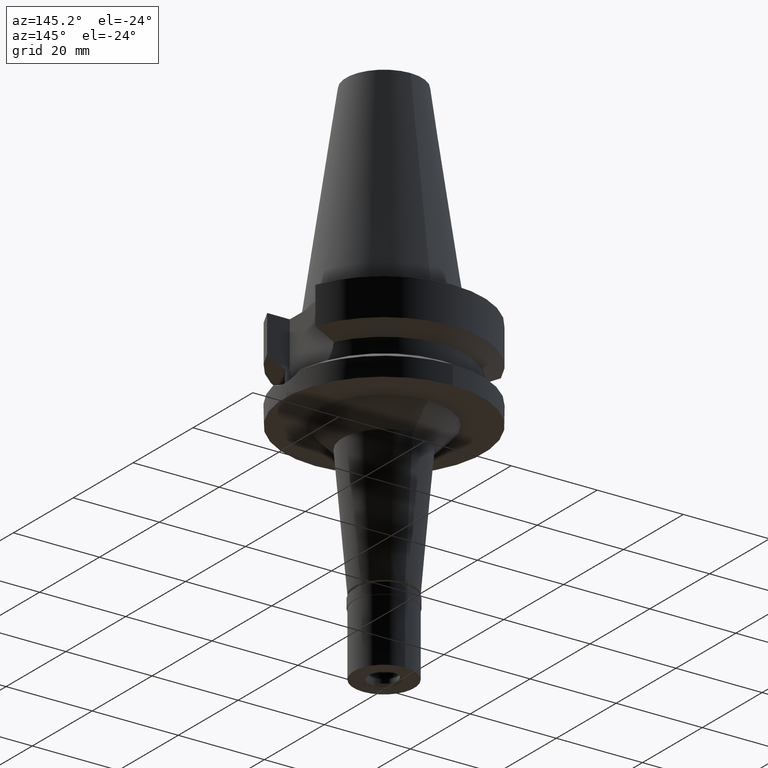
[diagram: clean part render]
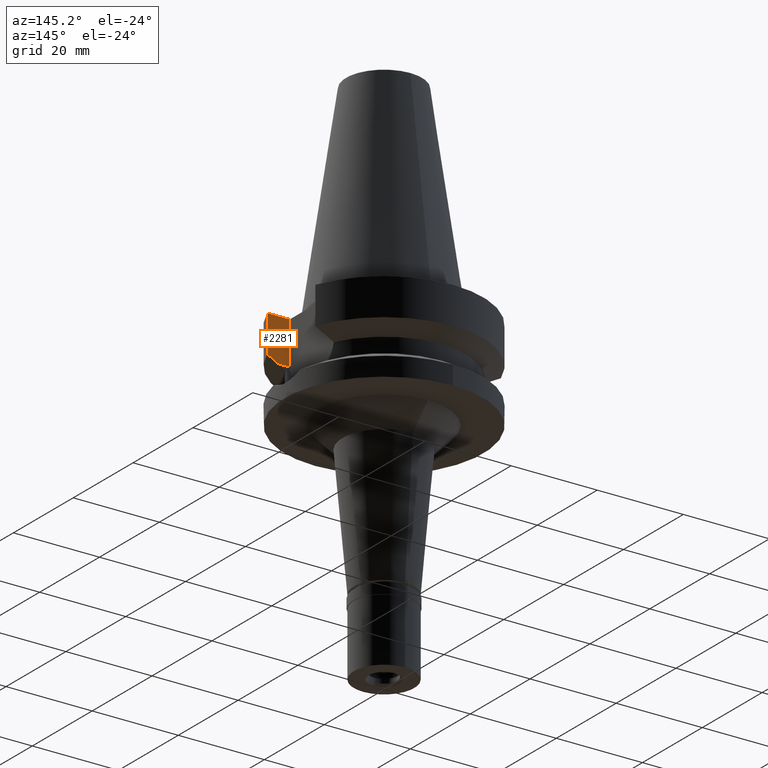
[diagram: same view with one face highlighted and labeled with its STEP entity id]
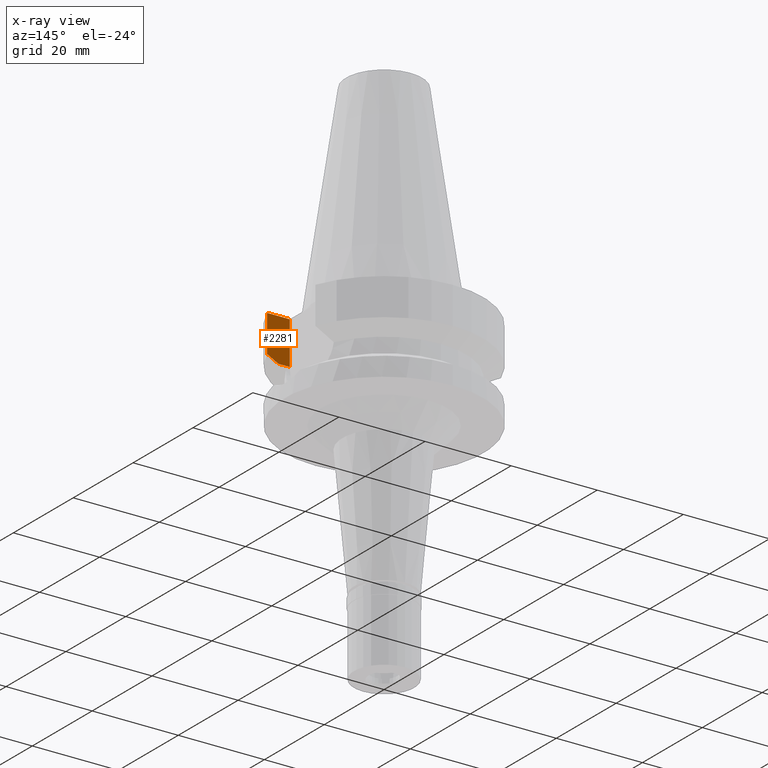
[diagram: x-ray of the same camera — body ghosted, the highlighted face saturated]
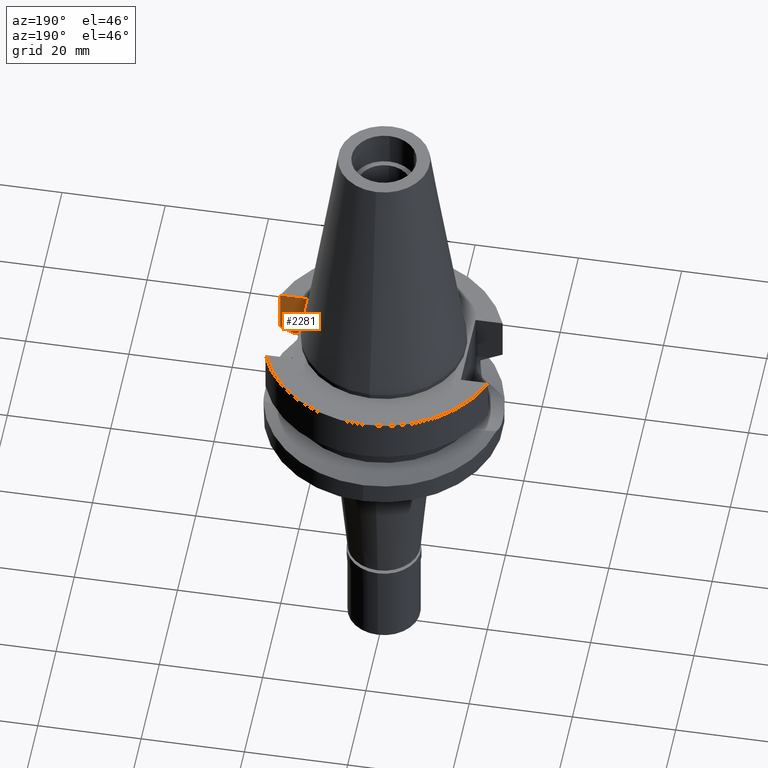
[diagram: same view with one face highlighted and labeled with its STEP entity id]
A machine part, auxiliary view. The second image highlights one B-rep face of the part: STEP entity #2281.
The next image is the same camera in x-ray: the body ghosted, the highlighted face saturated — about 0% of this face is hidden behind the body in this view.
A second angle (auxiliary view) of the same face is appended — the face is thin or edge-on in the first view.
In plain terms, the highlighted planar face has unit normal (0, -1, 0).
Its self-contained STEP definition (entity closure, byte-faithful):
#41 = VECTOR ( 'NONE', #2615, 1000.000000000000000 ) ;
#139 = B_SPLINE_CURVE_WITH_KNOTS ( 'NONE', 3,
 ( #2818, #1412, #528, #1913 ),
 .UNSPECIFIED., .F., .F.,
 ( 4, 4 ),
 ( 0.0000000000000000000, 1.000000000000000000 ),
 .UNSPECIFIED. ) ;
#313 = VECTOR ( 'NONE', #1894, 1000.000000000000114 ) ;
#426 = DIRECTION ( 'NONE',  ( 1.000000000000000000, -9.347030801892000173E-14, 0.0000000000000000000 ) ) ;
#480 = VERTEX_POINT ( 'NONE', #1077 ) ;
#528 = CARTESIAN_POINT ( 'NONE',  ( 20.64101735201231591, -8.050004185258069711, -10.05624233374762966 ) ) ;
#644 = EDGE_CURVE ( 'NONE', #1127, #480, #2799, .T. ) ;
#744 = CARTESIAN_POINT ( 'NONE',  ( 18.96736186693999926, -8.050001277873001015, -10.94999977540000025 ) ) ;
#829 = ORIENTED_EDGE ( 'NONE', *, *, #644, .T. ) ;
#880 = LINE ( 'NONE', #1099, #2166 ) ;
#930 = DIRECTION ( 'NONE',  ( 0.0000000000000000000, -1.000000000000000000, 0.0000000000000000000 ) ) ;
#1077 = CARTESIAN_POINT ( 'NONE',  ( 21.54524309446999908, -8.050000000002000888, -9.567208369710998639 ) ) ;
#1099 = CARTESIAN_POINT ( 'NONE',  ( 16.29999999999999716, -8.050000000000000711, -1.000000000000000000 ) ) ;
#1127 = VERTEX_POINT ( 'NONE', #1327 ) ;
#1144 = LINE ( 'NONE', #744, #2129 ) ;
#1153 = FACE_OUTER_BOUND ( 'NONE', #2327, .T. ) ;
#1161 = DIRECTION ( 'NONE',  ( -0.9999999999998816502, 4.790775581495907912E-07, -8.420253777260848103E-08 ) ) ;
#1170 = CARTESIAN_POINT ( 'NONE',  ( 21.54524309446999908, -8.050000000000000711, -1.000000000000000000 ) ) ;
#1326 = ORIENTED_EDGE ( 'NONE', *, *, #2617, .T. ) ;
#1327 = CARTESIAN_POINT ( 'NONE',  ( 21.54524309446999908, -8.050000000000000711, -1.000000000000000000 ) ) ;
#1405 = ORIENTED_EDGE ( 'NONE', *, *, #2746, .T. ) ;
#1412 = CARTESIAN_POINT ( 'NONE',  ( 19.78176446227738339, -8.050001299918164932, -10.51717305795229151 ) ) ;
#1415 = CARTESIAN_POINT ( 'NONE',  ( 18.96736186693999926, -8.050001277873001015, -10.94999977540000025 ) ) ;
#1457 = EDGE_CURVE ( 'NONE', #1731, #480, #139, .T. ) ;
#1649 = CARTESIAN_POINT ( 'NONE',  ( 16.29999999999999716, -8.050000000000000711, -1.000000000000000000 ) ) ;
#1665 = EDGE_CURVE ( 'NONE', #1863, #1127, #880, .T. ) ;
#1696 = VERTEX_POINT ( 'NONE', #2589 ) ;
#1731 = VERTEX_POINT ( 'NONE', #1415 ) ;
#1835 = PLANE ( 'NONE',  #2807 ) ;
#1863 = VERTEX_POINT ( 'NONE', #1649 ) ;
#1894 = DIRECTION ( 'NONE',  ( -9.134800745262689569E-08, -2.444862503416914398E-07, -0.9999999999999659162 ) ) ;
#1913 = CARTESIAN_POINT ( 'NONE',  ( 21.54524309446999908, -8.050000000002000888, -9.567208369710998639 ) ) ;
#2061 = CARTESIAN_POINT ( 'NONE',  ( 16.29999999999999716, -8.050000000000000711, -1.000000000000000000 ) ) ;
#2129 = VECTOR ( 'NONE', #1161, 1000.000000000000114 ) ;
#2166 = VECTOR ( 'NONE', #426, 1000.000000000000000 ) ;
#2214 = LINE ( 'NONE', #2683, #41 ) ;
#2234 = ORIENTED_EDGE ( 'NONE', *, *, #1457, .F. ) ;
#2274 = ORIENTED_EDGE ( 'NONE', *, *, #1665, .T. ) ;
#2281 = ADVANCED_FACE ( 'NONE', ( #1153 ), #1835, .F. ) ;
#2301 = DIRECTION ( 'NONE',  ( 0.0000000000000000000, 0.0000000000000000000, -1.000000000000000000 ) ) ;
#2327 = EDGE_LOOP ( 'NONE', ( #1405, #1326, #2274, #829, #2234 ) ) ;
#2589 = CARTESIAN_POINT ( 'NONE',  ( 16.29999999999999716, -8.050000000000000711, -10.94999999999999929 ) ) ;
#2615 = DIRECTION ( 'NONE',  ( 0.0000000000000000000, 0.0000000000000000000, 1.000000000000000000 ) ) ;
#2617 = EDGE_CURVE ( 'NONE', #1696, #1863, #2214, .T. ) ;
#2683 = CARTESIAN_POINT ( 'NONE',  ( 16.29999999999999716, -8.050000000000000711, -10.94999999999999929 ) ) ;
#2746 = EDGE_CURVE ( 'NONE', #1731, #1696, #1144, .T. ) ;
#2799 = LINE ( 'NONE', #1170, #313 ) ;
#2807 = AXIS2_PLACEMENT_3D ( 'NONE', #2061, #930, #2301 ) ;
#2818 = CARTESIAN_POINT ( 'NONE',  ( 18.96736186693999926, -8.050001277873001015, -10.94999977540000025 ) ) ;